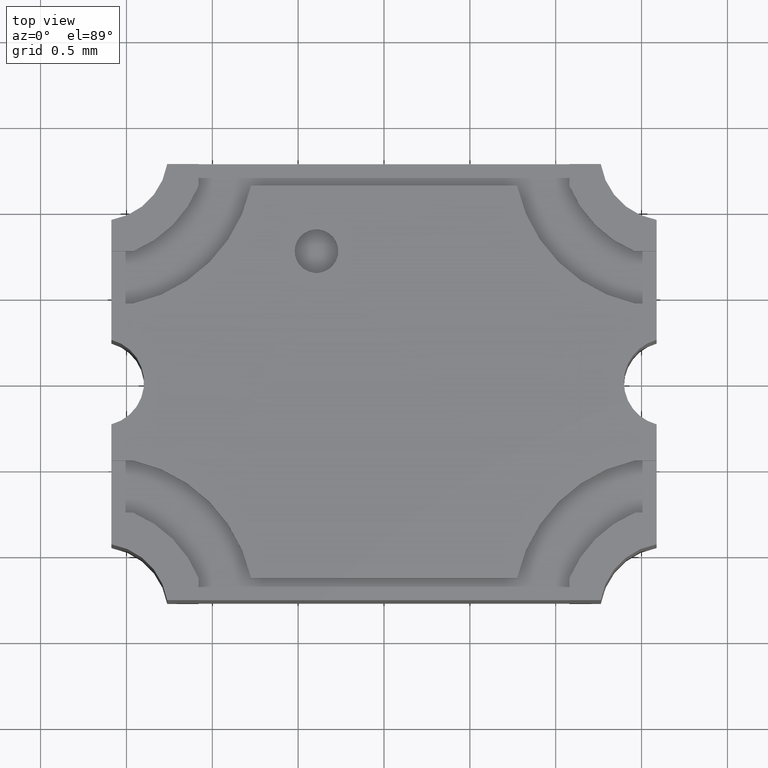
[diagram: clean part render]
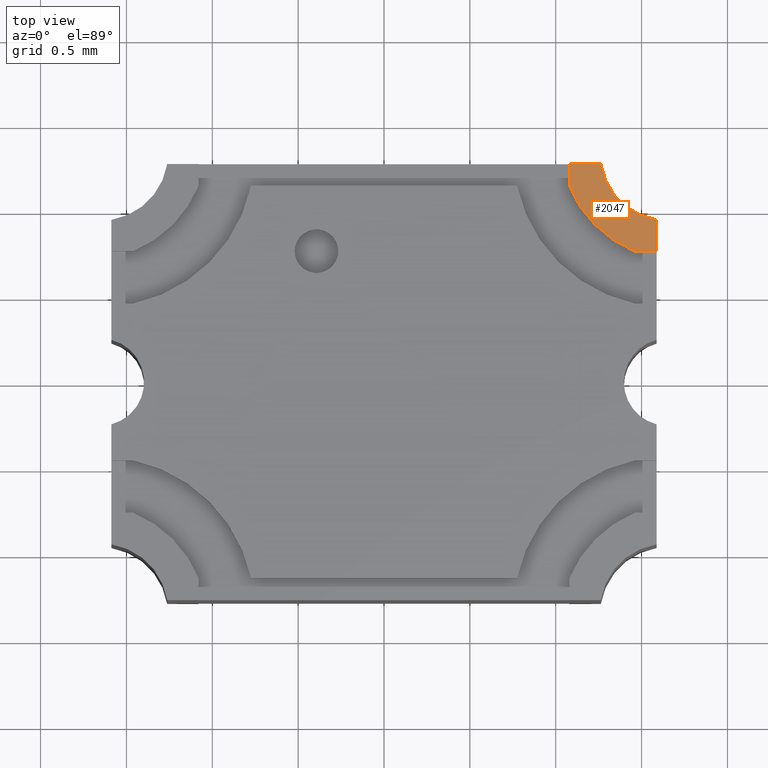
[diagram: same view with one face highlighted and labeled with its STEP entity id]
A machine part, top view. The second image highlights one B-rep face of the part: STEP entity #2047.
In plain terms, the highlighted planar face has unit normal (0, 0, 1).
Its self-contained STEP definition (entity closure, byte-faithful):
#10 = CARTESIAN_POINT ( 'NONE',  ( 0.06500000000204801676, 0.05000000000024273916, 0.04999999999999999584 ) ) ;
#47 = VECTOR ( 'NONE', #1473, 39.37007874015748143 ) ;
#48 = CARTESIAN_POINT ( 'NONE',  ( 0.06500000000204801676, 0.05250000000024280383, 0.04999999999999999584 ) ) ;
#84 = DIRECTION ( 'NONE',  ( 1.000000000000000000, 0.000000000000000000, 0.000000000000000000 ) ) ;
#140 = VERTEX_POINT ( 'NONE', #1668 ) ;
#153 = LINE ( 'NONE', #1824, #2353 ) ;
#174 = DIRECTION ( 'NONE',  ( 0.000000000000000000, -1.000000000000000000, 0.000000000000000000 ) ) ;
#256 = DIRECTION ( 'NONE',  ( 0.000000000000000000, 0.000000000000000000, 1.000000000000000000 ) ) ;
#275 = CIRCLE ( 'NONE', #1212, 0.02730252868481288647 ) ;
#331 = ORIENTED_EDGE ( 'NONE', *, *, #1512, .T. ) ;
#374 = VERTEX_POINT ( 'NONE', #537 ) ;
#381 = CIRCLE ( 'NONE', #1954, 0.01550000000000004673 ) ;
#537 = CARTESIAN_POINT ( 'NONE',  ( 0.06249999999329947792, 0.02999419437934407878, 0.04999999999999999584 ) ) ;
#547 = CARTESIAN_POINT ( 'NONE',  ( 0.04250000048382885504, 0.05250000000024280383, 0.04999999999999999584 ) ) ;
#553 = DIRECTION ( 'NONE',  ( 1.000000000000000000, 0.000000000000000000, 0.000000000000000000 ) ) ;
#563 = CARTESIAN_POINT ( 'NONE',  ( 0.04250000048382885504, 0.04499419438046731168, 0.04999999999999999584 ) ) ;
#744 = VECTOR ( 'NONE', #1748, 39.37007874015748143 ) ;
#806 = EDGE_CURVE ( 'NONE', #2251, #374, #1860, .T. ) ;
#809 = CARTESIAN_POINT ( 'NONE',  ( 0.06778943648238000552, 0.05528363068476579295, 0.04999999999999999584 ) ) ;
#825 = CARTESIAN_POINT ( 'NONE',  ( 0.04970294146126963408, 0.05000000000024273916, 0.04999999999999999584 ) ) ;
#874 = EDGE_CURVE ( 'NONE', #1913, #1493, #1179, .T. ) ;
#1034 = CARTESIAN_POINT ( 'NONE',  ( 0.04250000048382884810, 0.04999999998273850499, 0.04999999999999999584 ) ) ;
#1070 = LINE ( 'NONE', #547, #1985 ) ;
#1110 = ORIENTED_EDGE ( 'NONE', *, *, #2148, .T. ) ;
#1153 = EDGE_LOOP ( 'NONE', ( #2343, #1110, #331, #1892, #1255, #1701 ) ) ;
#1179 = LINE ( 'NONE', #10, #744 ) ;
#1204 = EDGE_CURVE ( 'NONE', #140, #374, #153, .T. ) ;
#1212 = AXIS2_PLACEMENT_3D ( 'NONE', #809, #2166, #84 ) ;
#1255 = ORIENTED_EDGE ( 'NONE', *, *, #806, .F. ) ;
#1400 = AXIS2_PLACEMENT_3D ( 'NONE', #1475, #2441, #1699 ) ;
#1473 = DIRECTION ( 'NONE',  ( 0.000000000000000000, -1.000000000000000000, 0.000000000000000000 ) ) ;
#1475 = CARTESIAN_POINT ( 'NONE',  ( 0.06500000000204801676, 0.05250000000024280383, 0.04999999999999999584 ) ) ;
#1493 = VERTEX_POINT ( 'NONE', #825 ) ;
#1503 = PLANE ( 'NONE',  #1400 ) ;
#1512 = EDGE_CURVE ( 'NONE', #2056, #140, #275, .T. ) ;
#1659 = CARTESIAN_POINT ( 'NONE',  ( 0.06250000000204802841, 0.05250000000024280383, 0.04999999999999999584 ) ) ;
#1660 = FACE_OUTER_BOUND ( 'NONE', #1153, .T. ) ;
#1668 = CARTESIAN_POINT ( 'NONE',  ( 0.05750000093230978743, 0.02999419437934407878, 0.04999999999999999584 ) ) ;
#1699 = DIRECTION ( 'NONE',  ( 1.000000000000000000, 0.000000000000000000, -0.000000000000000000 ) ) ;
#1701 = ORIENTED_EDGE ( 'NONE', *, *, #1802, .F. ) ;
#1748 = DIRECTION ( 'NONE',  ( 1.000000000000000000, 0.000000000000000000, -0.000000000000000000 ) ) ;
#1802 = EDGE_CURVE ( 'NONE', #1493, #2251, #381, .T. ) ;
#1824 = CARTESIAN_POINT ( 'NONE',  ( 0.06500000000204800288, 0.02999419437934407531, 0.04999999999999999584 ) ) ;
#1860 = LINE ( 'NONE', #1659, #47 ) ;
#1870 = DIRECTION ( 'NONE',  ( 1.000000000000000000, -8.537026583472020628E-16, 0.000000000000000000 ) ) ;
#1892 = ORIENTED_EDGE ( 'NONE', *, *, #1204, .T. ) ;
#1913 = VERTEX_POINT ( 'NONE', #1034 ) ;
#1954 = AXIS2_PLACEMENT_3D ( 'NONE', #48, #256, #553 ) ;
#1985 = VECTOR ( 'NONE', #174, 39.37007874015748143 ) ;
#2047 = ADVANCED_FACE ( 'NONE', ( #1660 ), #1503, .T. ) ;
#2056 = VERTEX_POINT ( 'NONE', #563 ) ;
#2148 = EDGE_CURVE ( 'NONE', #1913, #2056, #1070, .T. ) ;
#2166 = DIRECTION ( 'NONE',  ( 0.000000000000000000, 0.000000000000000000, 1.000000000000000000 ) ) ;
#2251 = VERTEX_POINT ( 'NONE', #2284 ) ;
#2284 = CARTESIAN_POINT ( 'NONE',  ( 0.06250000000204802841, 0.03720294145946440034, 0.04999999999999999584 ) ) ;
#2343 = ORIENTED_EDGE ( 'NONE', *, *, #874, .F. ) ;
#2353 = VECTOR ( 'NONE', #1870, 39.37007874015748143 ) ;
#2441 = DIRECTION ( 'NONE',  ( 0.000000000000000000, 0.000000000000000000, 1.000000000000000000 ) ) ;